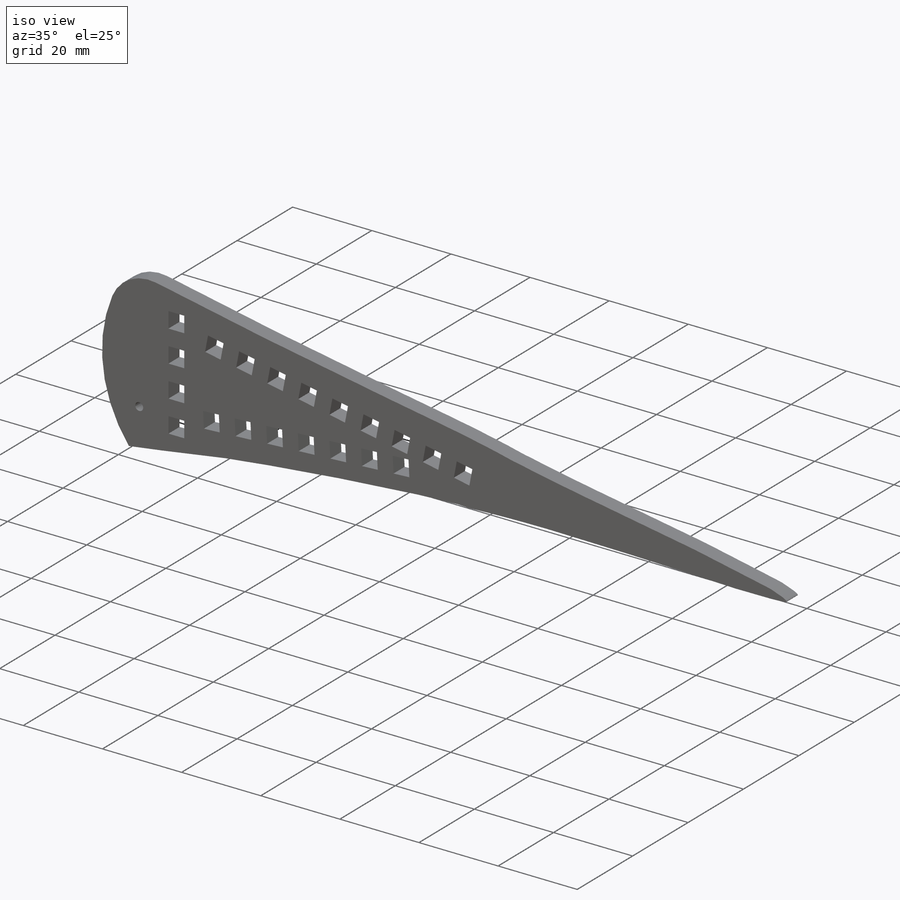
[diagram: iso view]
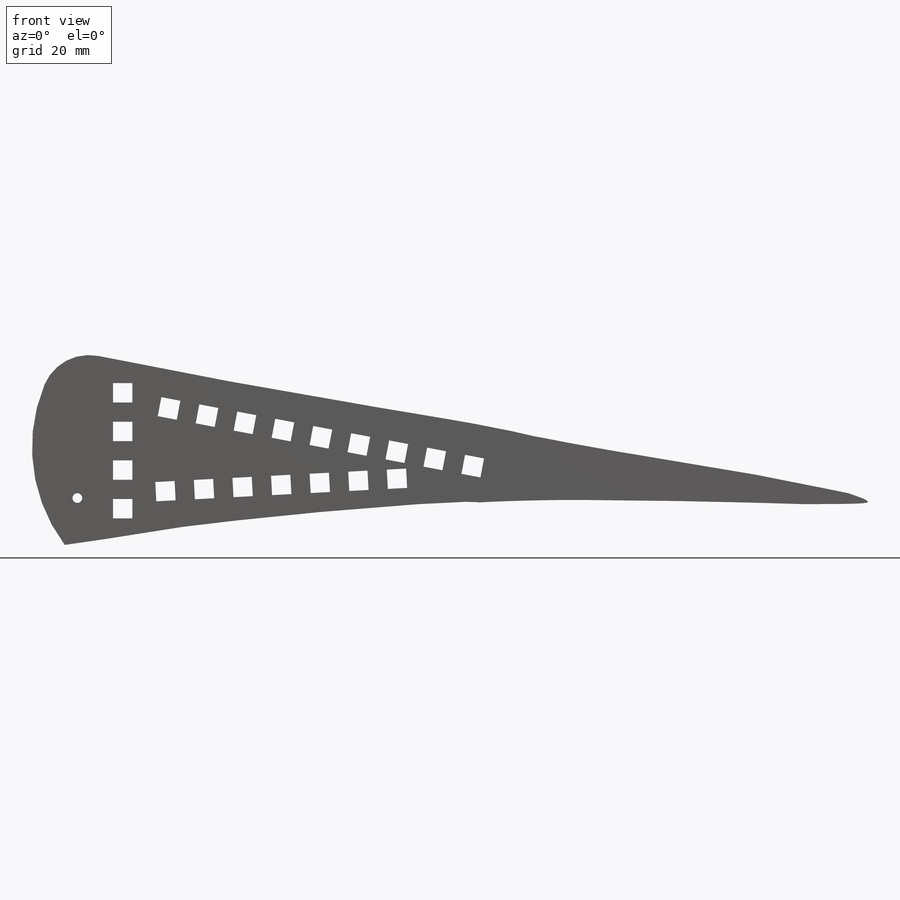
[diagram: front view]
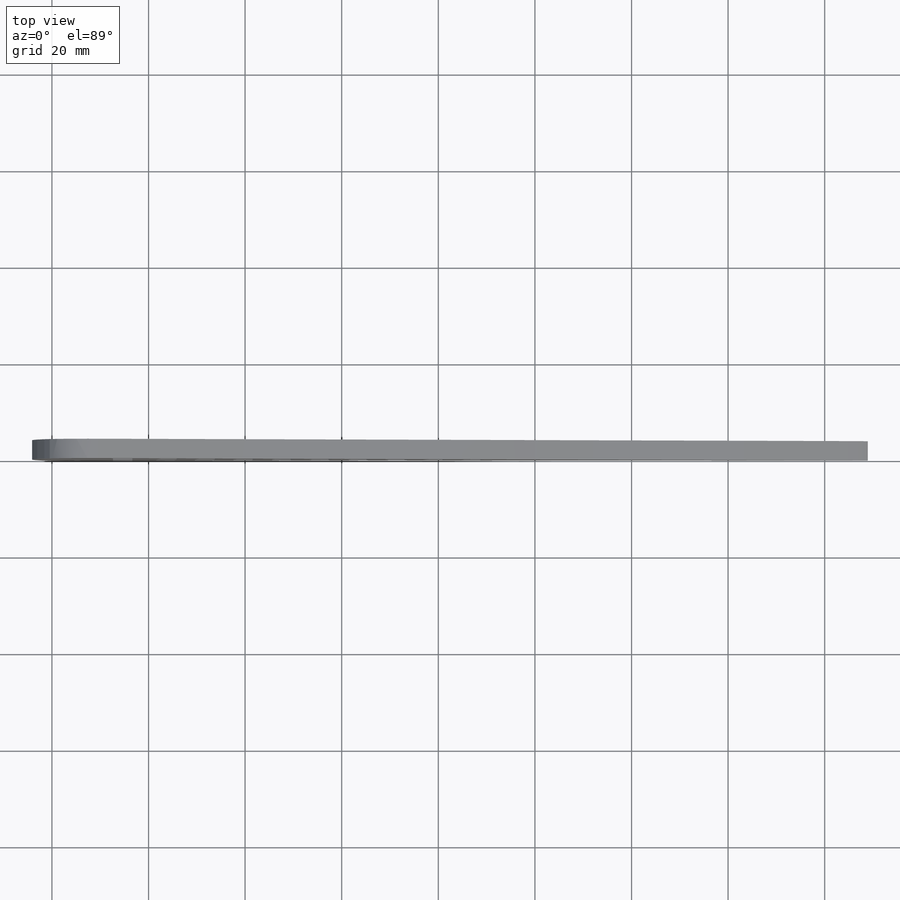
[diagram: top view]
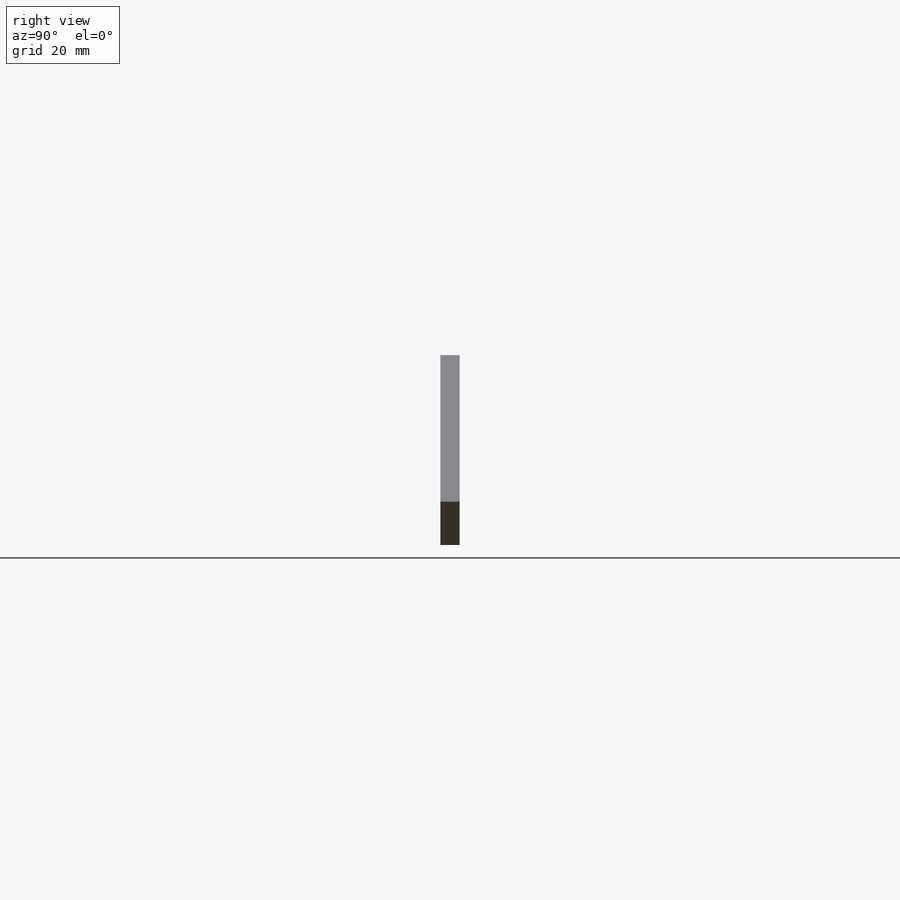
[diagram: right view]
SOLIDWORKS PART (.sldprt)
format: sldprt  version: not decoded by parser v0  size: 1,143,808 bytes
history: native  units: mm
features: fillet x25, sketch x9, cut_extrude x5, extrude x3, material x1 (+13 scaffold rows collapsed)
feature tree (56):
  scaffold x13  (default folders/planes/origin — collapsed)
  material  "Cedar"
  sketch  "Sketch11"  dims[c1.D3=32.0mm c1.D11=5.0mm c1.D12=5.0mm c1.D13=28.8mm c1.D19=~1038.448062mm c1.D20=~1038.448062mm c2.D13=5.0mm c2.D35=5.0mm c2.D36=34.0mm c2.D37=25.0mm c2.D38=30.0mm c3.D35=5.0mm c3.D42=5.0mm c3.D44=30.0mm c3.D1=4.0mm c3.D2=2.0mm c3.D4=2.0mm c3.D5=4.0mm c3.D6=2.0mm c3.D7=4.0mm c3.D8=2.0mm c3.D9=4.0mm c3.D10=2.0mm c3.D14=60.0mm c3.D15=150.0mm c3.D16=250.0mm c3.D17=140.0mm c3.D18=2.0mm c3.D19=79.616mm c4.D9=2.0mm c4.D19=2.0mm c4.D20=4.0mm c4.D21=4.0mm c4.D22=4.0mm c4.D23=4.0mm c4.D24=4.0mm c4.D25=0.1mm c4.D26=0.1mm c4.D27=4.0mm c4.D28=0.1mm c4.D29=4.0mm c4.D30=0.1mm c4.D31=4.0mm c4.D32=~500.144153mm c4.D33=2.0mm c4.D34=~1.650019mm c4.D35=~19.004713mm c5.D34=2.0mm c5.D35=~4.089875mm c5.D39=4.0mm c5.D40=4.0mm c5.D41=4.0mm c5.D43=90.0mm c5.D44=~19.590019mm c5.D45=15.0mm c5.4=4.0mm c5.D28=4.0mm c5.D26=4.0mm c5.D25=4.0mm c5.D27=4.0mm c5.D1=5.0mm c5.D18=8.0mm]
  extrude  "Boss-Extrude41"  Depth=4mm
  sketch  "Sketch13"
  cut_extrude  "Cut-Extrude3"  [1 undecoded]
  sketch  "Sketch18"  dims[D1=0.0mm]
  extrude  "Boss-Extrude52"  [1 undecoded]
  sketch  "Sketch19"
  cut_extrude  "Cut-Extrude4"  [1 undecoded]
  sketch  "Sketch21"
  fillet  "Fillet1"  Radius=5mm
  fillet  "Fillet2"  Radius=5mm
  fillet  "Fillet3"  Radius=5mm
  fillet  "Fillet4"  Radius=5mm
  fillet  "Fillet5"  Radius=5mm
  fillet  "Fillet6"  Radius=5mm
  fillet  "Fillet7"  Radius=5mm
  fillet  "Fillet10"  Radius=5mm
  fillet  "Fillet12"  Radius=5mm
  fillet  "Fillet13"  Radius=5mm
  fillet  "Fillet14"  Radius=5mm
  fillet  "Fillet15"  Radius=5mm
  fillet  "Fillet16"  Radius=3mm
  fillet  "Fillet17"  Radius=3mm
  fillet  "Fillet18"  Radius=1.5mm
  fillet  "Fillet19"  Radius=1mm
  fillet  "Fillet20"  Radius=5mm
  fillet  "Fillet21"  Radius=5mm
  fillet  "Fillet22"  Radius=5mm
  fillet  "Fillet23"  Radius=5mm
  fillet  "Fillet24"  Radius=5mm
  fillet  "Fillet25"  Radius=5mm
  fillet  "Fillet26"  Radius=5mm
  fillet  "Fillet27"  Radius=5mm
  sketch  "Sketch23"  dims[D2=30.0mm D3=2.0mm D1=90.0mm]
  cut_extrude  "Cut-Extrude7"  [1 undecoded]
  sketch  "Sketch22"  dims[c1.D2=30.0mm c1.D3=5.0mm c1.D4=30.0mm c2.D3=30.0mm c2.D1=30.0mm c3.D3=30.0mm c3.D2=30.0mm c4.D3=30.0mm c4.D1=93.0mm c4.D2=~40.313011mm c5.D1=~94.704508mm c5.D3=~74.901928mm c6.D1=3.0mm c6.D3=~5.594687mm c6.D2=4.0mm]
  cut_extrude  "Cut-Extrude8"  Depth=10mm
  extrude  "Boss-Extrude53"  [1 undecoded]
  sketch  "Sketch11<20>"  dims[D1=4.0mm]
  sketch  "Sketch24"  dims[c1.D1=~40.501943mm c1.D2=~8.799832mm c1.D3=~166.267039mm c1.D4=~168.748297mm c2.D2=6.0mm c2.D4=8.0mm c2.D5=10.0mm c2.D6=60.0mm c2.D7=~8.925404mm c2.D8=4.0mm c2.D9=4.0mm c2.D11=7.0mm c2.D12=4.0mm c2.D13=4.0mm c2.D14=20.0mm c2.D15=4.0mm c2.D16=4.0mm c2.D18=~4.310497mm c2.D10=4.0 c2.D17=7.0 c3.D18=9.0]
  cut_extrude  "Cut-Extrude9"  Depth=4mm
  fillet  "Fillet28"  Radius=10mm
decode coverage: 34 of 42 modeling features carry decoded parameters
note: ~ marks probable driven/reference dimensions
note: 5 parameter values undecoded
summary: no parameter record found for 5 features
note: suppression state not decoded; provenance and decode notes live in map.json
